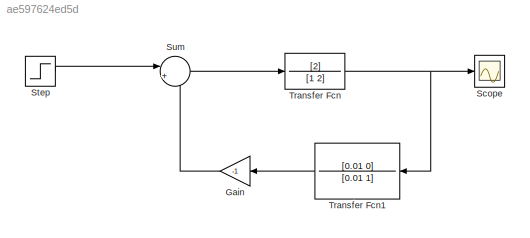
MODEL slx_ae597624ed5d
KIND model
CONFIG AbsTol = auto
CONFIG EnableMultiTasking = off
CONFIG FixedStep = auto
CONFIG MaxStep = auto
CONFIG MinStep = auto
CONFIG RelTol = 1e-3
CONFIG SampleTimeConstraint = Unconstrained
CONFIG SolverName = VariableStepAuto
CONFIG StartTime = 0.0
CONFIG StopTime = 10.0
BLOCK [Gain] Gain
  Gain = -1
  NameLocation = top
BLOCK [Scope] Scope
  Floating = off
  NumInputPorts = 1
  ScopeSpecificationString = Simulink.scopes.TimeScopeBlockCfg('CurrentConfiguration', extmgr.ConfigurationSet(extmgr.Configuration('Core','General UI',true),extmgr.Configuration('Core','Source UI',true),extmgr.Configuration('Sources','WiredSimulink',true),extmgr.Configuration('Visuals','Time Domain',true,'SerializedDisplays',{struct('MinYLimReal','-0.52529','MaxYLimReal','1.50192','YLabelReal','','MinYLimMag','0.00000','MaxY...<+1496ch>
BLOCK [Step] Step
  SampleTime = 0
  Time = 0
BLOCK [Sum] Sum
  Inputs = |+-
BLOCK [TransferFcn] Transfer Fcn
  Denominator = [1 2]
  Numerator = [2]
BLOCK [TransferFcn] Transfer Fcn1
  Denominator = [0.01 1]
  NameLocation = top
  Numerator = [0.01 0]
  ParameterTunability = Unconstrained
LINE Gain:1 -> Sum:2
LINE Step:1 -> Sum:1
LINE Sum:1 -> Transfer Fcn:1
LINE Transfer Fcn1:1 -> Gain:1
NET Transfer Fcn:1 -> Scope:1, Transfer Fcn1:1
note: NET lines group one-source signal fan-out (src -> all destinations, sorted); 1:1 wires keep LINE
